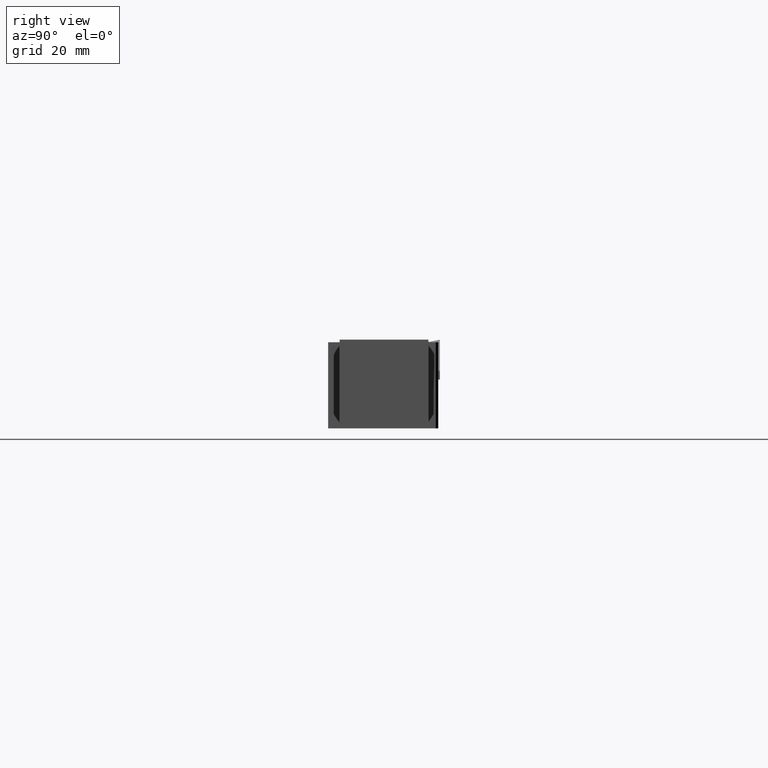
[diagram: clean part render]
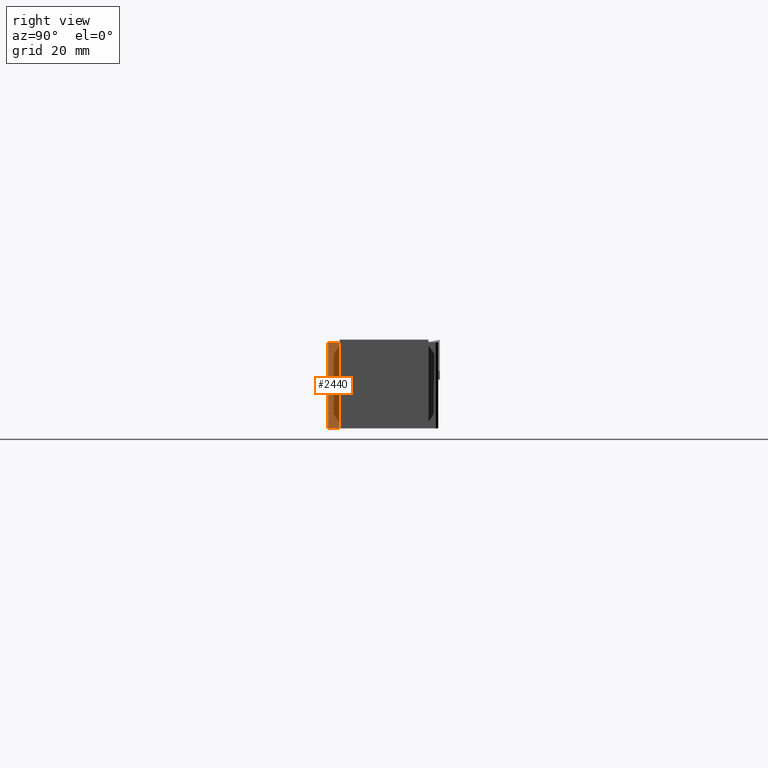
[diagram: same view with one face highlighted and labeled with its STEP entity id]
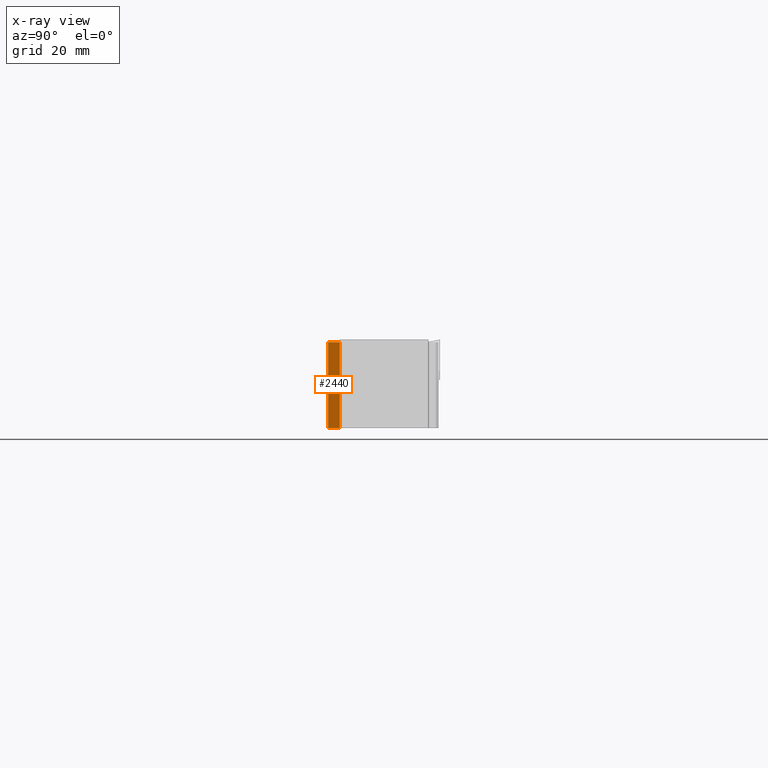
[diagram: x-ray of the same camera — body ghosted, the highlighted face saturated]
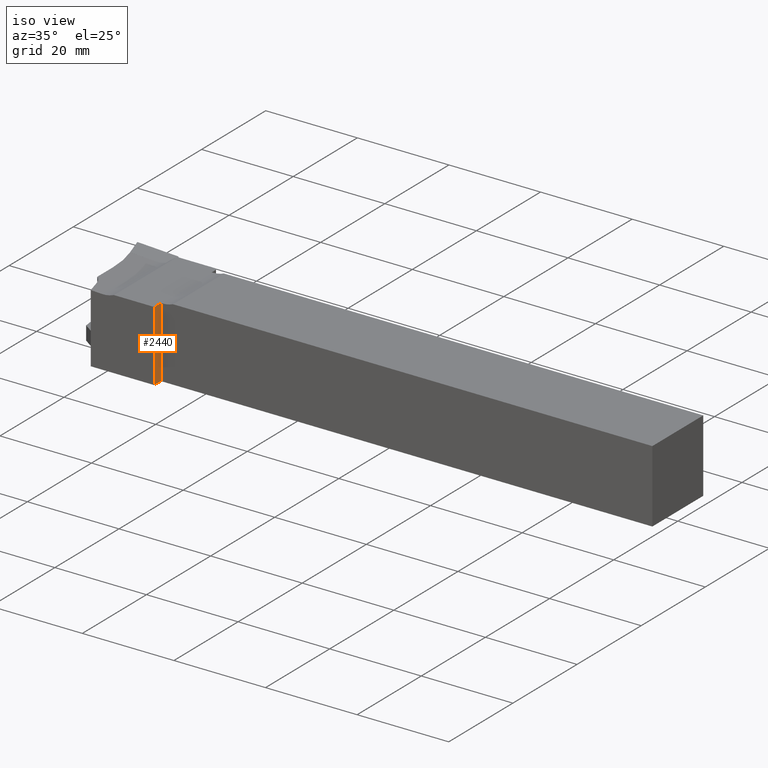
[diagram: same view with one face highlighted and labeled with its STEP entity id]
A machine part, right view. The second image highlights one B-rep face of the part: STEP entity #2440.
The next image is the same camera in x-ray: the body ghosted, the highlighted face saturated — about 0% of this face is hidden behind the body in this view.
A second angle (iso view) of the same face is appended — the face is thin or edge-on in the first view.
In plain terms, the highlighted planar face has unit normal (1, 0, -0).
Its self-contained STEP definition (entity closure, byte-faithful):
#114 = LINE ( 'NONE', #477, #788 ) ;
#130 = ORIENTED_EDGE ( 'NONE', *, *, #525, .T. ) ;
#208 = AXIS2_PLACEMENT_3D ( 'NONE', #2941, #623, #2499 ) ;
#296 = EDGE_CURVE ( 'NONE', #1401, #1984, #308, .T. ) ;
#308 = LINE ( 'NONE', #2105, #2719 ) ;
#477 = CARTESIAN_POINT ( 'NONE',  ( -107.3000000000000100, -7.937500000000000000, 7.471709989437755400 ) ) ;
#525 = EDGE_CURVE ( 'NONE', #1984, #939, #1822, .T. ) ;
#623 = DIRECTION ( 'NONE',  ( 1.000000000000000000, 0.0000000000000000000, -0.0000000000000000000 ) ) ;
#757 = ORIENTED_EDGE ( 'NONE', *, *, #296, .T. ) ;
#788 = VECTOR ( 'NONE', #811, 1000.000000000000000 ) ;
#811 = DIRECTION ( 'NONE',  ( 0.0000000000000000000, 1.000000000000000000, 0.0000000000000000000 ) ) ;
#939 = VERTEX_POINT ( 'NONE', #3301 ) ;
#1247 = LINE ( 'NONE', #3126, #2527 ) ;
#1331 = DIRECTION ( 'NONE',  ( -0.0000000000000000000, 1.000000000000000000, -0.0000000000000000000 ) ) ;
#1401 = VERTEX_POINT ( 'NONE', #2948 ) ;
#1482 = PLANE ( 'NONE',  #208 ) ;
#1822 = LINE ( 'NONE', #2135, #2159 ) ;
#1868 = FACE_OUTER_BOUND ( 'NONE', #3127, .T. ) ;
#1954 = EDGE_CURVE ( 'NONE', #1401, #2924, #1247, .T. ) ;
#1984 = VERTEX_POINT ( 'NONE', #2089 ) ;
#2089 = CARTESIAN_POINT ( 'NONE',  ( -107.3000000000000100, -7.937500000000000000, -7.937500000000000000 ) ) ;
#2105 = CARTESIAN_POINT ( 'NONE',  ( -107.3000000000000100, -7.937500000000000000, -7.937500000000000000 ) ) ;
#2106 = DIRECTION ( 'NONE',  ( 0.0000000000000000000, 0.0000000000000000000, 1.000000000000000000 ) ) ;
#2135 = CARTESIAN_POINT ( 'NONE',  ( -107.3000000000000100, -7.937500000000000000, -7.937500000000000000 ) ) ;
#2159 = VECTOR ( 'NONE', #2106, 1000.000000000000000 ) ;
#2240 = EDGE_CURVE ( 'NONE', #2924, #939, #114, .T. ) ;
#2308 = ORIENTED_EDGE ( 'NONE', *, *, #1954, .F. ) ;
#2425 = DIRECTION ( 'NONE',  ( 0.0000000000000000000, 0.0000000000000000000, 1.000000000000000000 ) ) ;
#2440 = ADVANCED_FACE ( 'NONE', ( #1868 ), #1482, .T. ) ;
#2499 = DIRECTION ( 'NONE',  ( -0.0000000000000000000, 0.0000000000000000000, -1.000000000000000000 ) ) ;
#2527 = VECTOR ( 'NONE', #2425, 1000.000000000000000 ) ;
#2719 = VECTOR ( 'NONE', #1331, 1000.000000000000000 ) ;
#2894 = CARTESIAN_POINT ( 'NONE',  ( -107.3000000000000100, -10.00000000000000200, 7.471709989437755400 ) ) ;
#2924 = VERTEX_POINT ( 'NONE', #2894 ) ;
#2941 = CARTESIAN_POINT ( 'NONE',  ( -107.3000000000000100, -7.937500000000000000, -7.937500000000000000 ) ) ;
#2948 = CARTESIAN_POINT ( 'NONE',  ( -107.3000000000000100, -10.00000000000000200, -7.937500000000000000 ) ) ;
#3013 = ORIENTED_EDGE ( 'NONE', *, *, #2240, .F. ) ;
#3126 = CARTESIAN_POINT ( 'NONE',  ( -107.3000000000000100, -10.00000000000000200, -7.937500000000000000 ) ) ;
#3127 = EDGE_LOOP ( 'NONE', ( #3013, #2308, #757, #130 ) ) ;
#3301 = CARTESIAN_POINT ( 'NONE',  ( -107.3000000000000100, -7.937500000000000000, 7.471709989437755400 ) ) ;